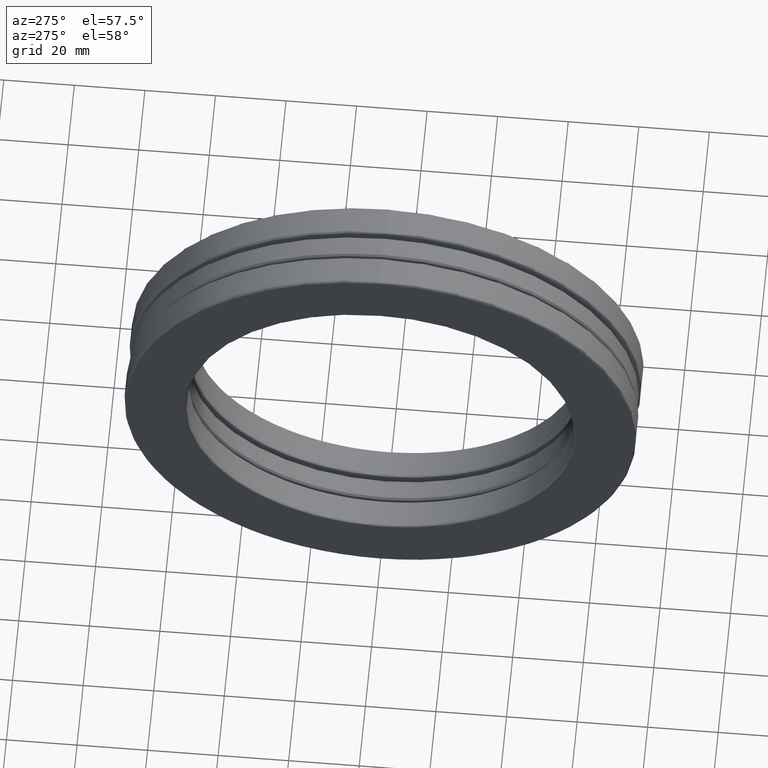
[diagram: clean part render]
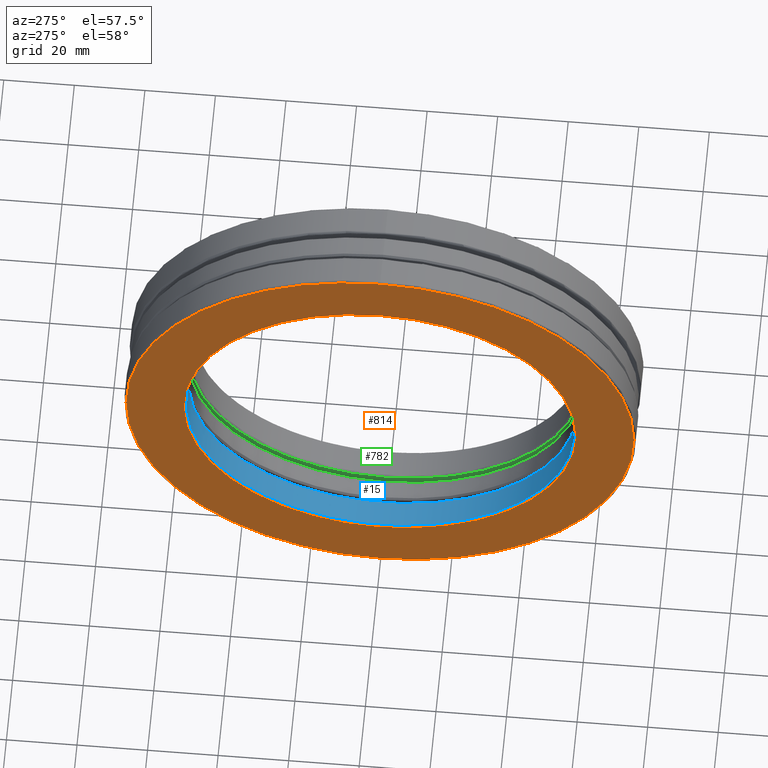
[diagram: same view with three faces highlighted in distinct colors, each labeled with its STEP entity id]
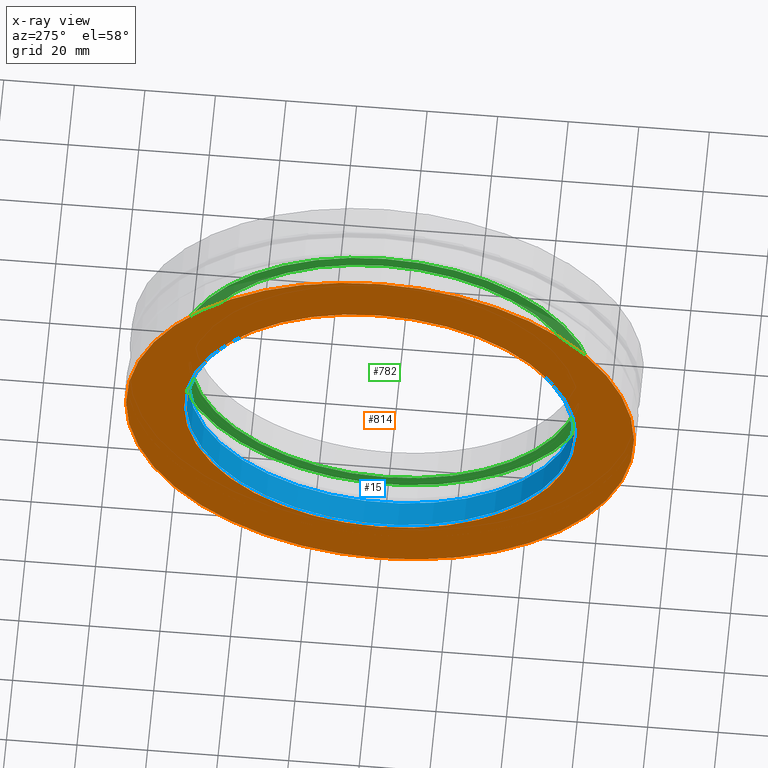
[diagram: x-ray of the same camera — body ghosted, the three highlighted faces saturated]
A machine part, auxiliary view with three faces highlighted in distinct colors.
The next image is the same camera in x-ray (body ghosted, the three faces saturated) — at least one of them is partly hidden behind the body in this view.
Their STEP definitions:

[orange] entity #814 — the highlighted planar face has unit normal (1, 0, 0).
#2 = DIRECTION ( 'NONE',  ( -1.000000000000000000, -0.0000000000000000000, -0.0000000000000000000 ) ) ;
#7 = FACE_BOUND ( 'NONE', #174, .T. ) ;
#19 = ORIENTED_EDGE ( 'NONE', *, *, #555, .F. ) ;
#40 = DIRECTION ( 'NONE',  ( 1.000000000000000000, 0.0000000000000000000, 0.0000000000000000000 ) ) ;
#60 = ORIENTED_EDGE ( 'NONE', *, *, #639, .T. ) ;
#61 = AXIS2_PLACEMENT_3D ( 'NONE', #445, #2, #321 ) ;
#163 = CARTESIAN_POINT ( 'NONE',  ( -0.4920000000000001000, 0.0000000000000000000, 2.834500000000000700 ) ) ;
#174 = EDGE_LOOP ( 'NONE', ( #19 ) ) ;
#178 = VERTEX_POINT ( 'NONE', #477 ) ;
#195 = AXIS2_PLACEMENT_3D ( 'NONE', #390, #507, #342 ) ;
#222 = PLANE ( 'NONE',  #762 ) ;
#296 = CIRCLE ( 'NONE', #195, 2.834500000000000700 ) ;
#321 = DIRECTION ( 'NONE',  ( 0.0000000000000000000, 0.0000000000000000000, 1.000000000000000000 ) ) ;
#342 = DIRECTION ( 'NONE',  ( 0.0000000000000000000, 0.0000000000000000000, 1.000000000000000000 ) ) ;
#358 = CARTESIAN_POINT ( 'NONE',  ( -0.4920000000000000500, -1.035492459848085400E-016, 0.0000000000000000000 ) ) ;
#373 = VERTEX_POINT ( 'NONE', #163 ) ;
#390 = CARTESIAN_POINT ( 'NONE',  ( -0.4920000000000001000, 0.0000000000000000000, 0.0000000000000000000 ) ) ;
#445 = CARTESIAN_POINT ( 'NONE',  ( -0.4919999999999999900, 0.0000000000000000000, 0.0000000000000000000 ) ) ;
#477 = CARTESIAN_POINT ( 'NONE',  ( -0.4919999999999999900, 0.0000000000000000000, 2.185499999999999800 ) ) ;
#507 = DIRECTION ( 'NONE',  ( -1.000000000000000000, -0.0000000000000000000, -0.0000000000000000000 ) ) ;
#555 = EDGE_CURVE ( 'NONE', #178, #178, #633, .T. ) ;
#589 = DIRECTION ( 'NONE',  ( 0.0000000000000000000, 0.0000000000000000000, -1.000000000000000000 ) ) ;
#590 = FACE_OUTER_BOUND ( 'NONE', #732, .T. ) ;
#633 = CIRCLE ( 'NONE', #61, 2.185499999999999800 ) ;
#639 = EDGE_CURVE ( 'NONE', #373, #373, #296, .T. ) ;
#732 = EDGE_LOOP ( 'NONE', ( #60 ) ) ;
#762 = AXIS2_PLACEMENT_3D ( 'NONE', #358, #40, #589 ) ;
#814 = ADVANCED_FACE ( 'NONE', ( #7, #590 ), #222, .F. ) ;

[blue] entity #15 — the highlighted cylindrical surface (bore or boss wall) has radius 55.0037 mm, axis along (-1, -0, -0).
#15 = ADVANCED_FACE ( 'NONE', ( #793, #216 ), #615, .F. ) ;
#89 = DIRECTION ( 'NONE',  ( 0.0000000000000000000, 0.0000000000000000000, 1.000000000000000000 ) ) ;
#106 = AXIS2_PLACEMENT_3D ( 'NONE', #789, #607, #710 ) ;
#169 = EDGE_LOOP ( 'NONE', ( #209 ) ) ;
#175 = AXIS2_PLACEMENT_3D ( 'NONE', #509, #635, #264 ) ;
#209 = ORIENTED_EDGE ( 'NONE', *, *, #260, .F. ) ;
#216 = FACE_OUTER_BOUND ( 'NONE', #169, .T. ) ;
#260 = EDGE_CURVE ( 'NONE', #668, #668, #810, .T. ) ;
#262 = EDGE_LOOP ( 'NONE', ( #790 ) ) ;
#264 = DIRECTION ( 'NONE',  ( 0.0000000000000000000, 0.0000000000000000000, 1.000000000000000000 ) ) ;
#293 = AXIS2_PLACEMENT_3D ( 'NONE', #404, #464, #89 ) ;
#306 = EDGE_CURVE ( 'NONE', #365, #365, #673, .T. ) ;
#365 = VERTEX_POINT ( 'NONE', #594 ) ;
#404 = CARTESIAN_POINT ( 'NONE',  ( -0.4719999999999999200, 0.0000000000000000000, 0.0000000000000000000 ) ) ;
#464 = DIRECTION ( 'NONE',  ( -1.000000000000000000, -0.0000000000000000000, -0.0000000000000000000 ) ) ;
#509 = CARTESIAN_POINT ( 'NONE',  ( 0.0000000000000000000, 0.0000000000000000000, 0.0000000000000000000 ) ) ;
#594 = CARTESIAN_POINT ( 'NONE',  ( -0.4719999999999999200, 0.0000000000000000000, 2.165499999999999800 ) ) ;
#607 = DIRECTION ( 'NONE',  ( -1.000000000000000000, -0.0000000000000000000, -0.0000000000000000000 ) ) ;
#615 = CYLINDRICAL_SURFACE ( 'NONE', #175, 2.165499999999999800 ) ;
#635 = DIRECTION ( 'NONE',  ( -1.000000000000000000, -0.0000000000000000000, -0.0000000000000000000 ) ) ;
#650 = CARTESIAN_POINT ( 'NONE',  ( -0.1840032799999997100, 0.0000000000000000000, 2.165499999999999800 ) ) ;
#668 = VERTEX_POINT ( 'NONE', #650 ) ;
#673 = CIRCLE ( 'NONE', #293, 2.165499999999999800 ) ;
#710 = DIRECTION ( 'NONE',  ( 0.0000000000000000000, 0.0000000000000000000, 1.000000000000000000 ) ) ;
#789 = CARTESIAN_POINT ( 'NONE',  ( -0.1840032799999997100, 0.0000000000000000000, 0.0000000000000000000 ) ) ;
#790 = ORIENTED_EDGE ( 'NONE', *, *, #306, .T. ) ;
#793 = FACE_OUTER_BOUND ( 'NONE', #262, .T. ) ;
#810 = CIRCLE ( 'NONE', #106, 2.165499999999999800 ) ;

[green] entity #782 — the highlighted planar face has unit normal (1, 0, 0).
#86 = ORIENTED_EDGE ( 'NONE', *, *, #765, .T. ) ;
#97 = PLANE ( 'NONE',  #468 ) ;
#99 = DIRECTION ( 'NONE',  ( 1.000000000000000000, 0.0000000000000000000, 0.0000000000000000000 ) ) ;
#105 = AXIS2_PLACEMENT_3D ( 'NONE', #795, #660, #156 ) ;
#111 = CIRCLE ( 'NONE', #105, 2.332047972337370400 ) ;
#116 = CARTESIAN_POINT ( 'NONE',  ( 0.1640032800000010000, 0.0000000000000000000, 0.0000000000000000000 ) ) ;
#156 = DIRECTION ( 'NONE',  ( 0.0000000000000000000, 0.0000000000000000000, 1.000000000000000000 ) ) ;
#176 = CIRCLE ( 'NONE', #577, 2.185499999999999800 ) ;
#212 = CARTESIAN_POINT ( 'NONE',  ( 0.1640032800000010000, 0.0000000000000000000, 2.185499999999999800 ) ) ;
#259 = FACE_OUTER_BOUND ( 'NONE', #749, .T. ) ;
#284 = ORIENTED_EDGE ( 'NONE', *, *, #322, .F. ) ;
#322 = EDGE_CURVE ( 'NONE', #510, #510, #176, .T. ) ;
#398 = VERTEX_POINT ( 'NONE', #546 ) ;
#429 = DIRECTION ( 'NONE',  ( 0.0000000000000000000, 0.0000000000000000000, 1.000000000000000000 ) ) ;
#468 = AXIS2_PLACEMENT_3D ( 'NONE', #784, #99, #659 ) ;
#510 = VERTEX_POINT ( 'NONE', #212 ) ;
#546 = CARTESIAN_POINT ( 'NONE',  ( 0.1640032800000009700, 0.0000000000000000000, 2.332047972337370400 ) ) ;
#547 = EDGE_LOOP ( 'NONE', ( #284 ) ) ;
#577 = AXIS2_PLACEMENT_3D ( 'NONE', #116, #809, #429 ) ;
#659 = DIRECTION ( 'NONE',  ( 0.0000000000000000000, 0.0000000000000000000, -1.000000000000000000 ) ) ;
#660 = DIRECTION ( 'NONE',  ( -1.000000000000000000, -0.0000000000000000000, -0.0000000000000000000 ) ) ;
#685 = FACE_BOUND ( 'NONE', #547, .T. ) ;
#749 = EDGE_LOOP ( 'NONE', ( #86 ) ) ;
#765 = EDGE_CURVE ( 'NONE', #398, #398, #111, .T. ) ;
#782 = ADVANCED_FACE ( 'NONE', ( #685, #259 ), #97, .F. ) ;
#784 = CARTESIAN_POINT ( 'NONE',  ( 0.1640032800000009200, 2.588782924243229700E-017, 0.0000000000000000000 ) ) ;
#795 = CARTESIAN_POINT ( 'NONE',  ( 0.1640032800000009700, 0.0000000000000000000, 0.0000000000000000000 ) ) ;
#809 = DIRECTION ( 'NONE',  ( -1.000000000000000000, -0.0000000000000000000, -0.0000000000000000000 ) ) ;